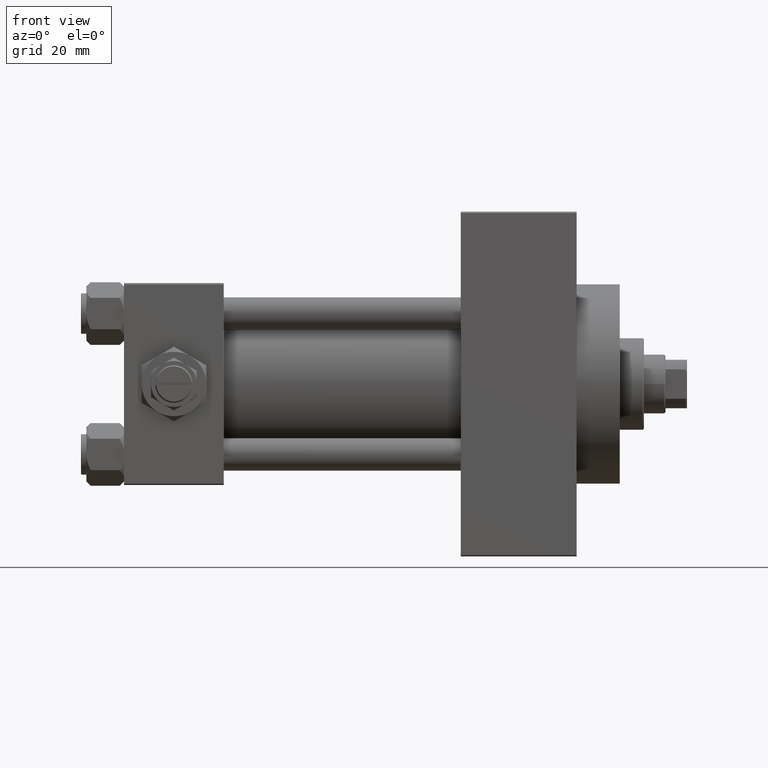
[diagram: clean part render]
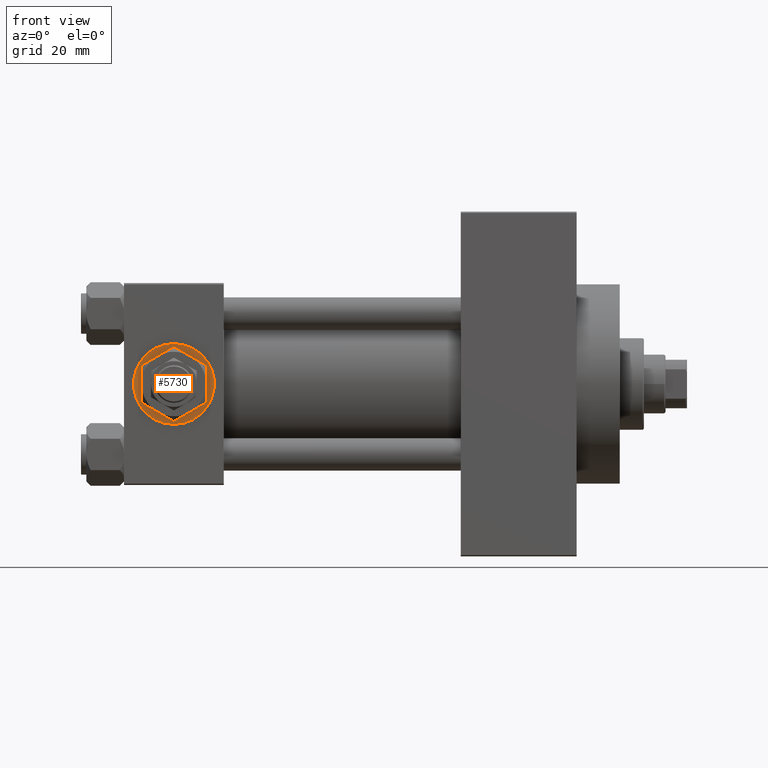
[diagram: same view with one face highlighted and labeled with its STEP entity id]
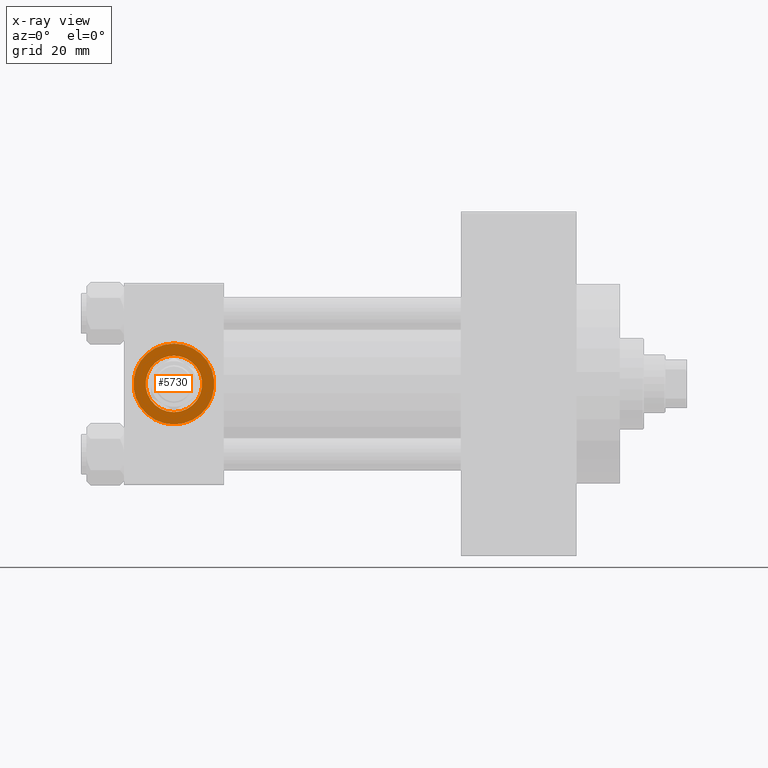
[diagram: x-ray of the same camera — body ghosted, the highlighted face saturated]
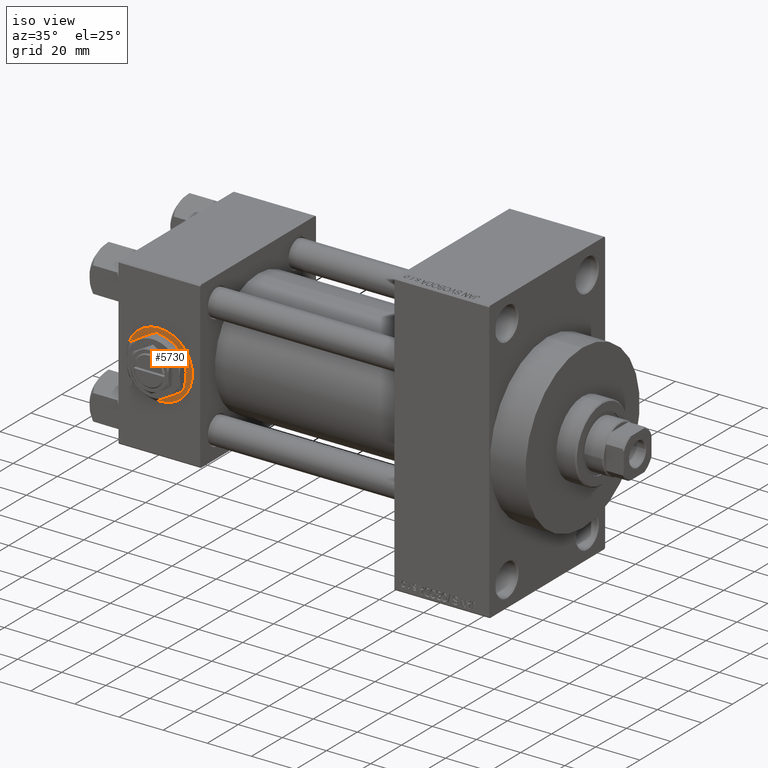
[diagram: same view with one face highlighted and labeled with its STEP entity id]
A machine part, front view. The second image highlights one B-rep face of the part: STEP entity #5730.
The next image is the same camera in x-ray: the body ghosted, the highlighted face saturated — about 0% of this face is hidden behind the body in this view.
A second angle (iso view) of the same face is appended — the face is thin or edge-on in the first view.
In plain terms, the highlighted planar face has unit normal (0, -1, -0).
Its self-contained STEP definition (entity closure, byte-faithful):
#443 = VERTEX_POINT ( 'NONE', #22171 ) ;
#2049 = PLANE ( 'NONE',  #4910 ) ;
#3812 = DIRECTION ( 'NONE',  ( 0.000000000000000000, -1.000000000000000000, -8.673617379884036705E-17 ) ) ;
#4910 = AXIS2_PLACEMENT_3D ( 'NONE', #9199, #35512, #46839 ) ;
#5437 = EDGE_LOOP ( 'NONE', ( #13551, #19756 ) ) ;
#5730 = ADVANCED_FACE ( 'NONE', ( #35028, #32048 ), #2049, .T. ) ;
#7262 = EDGE_CURVE ( 'NONE', #25494, #46042, #9519, .T. ) ;
#7398 = VERTEX_POINT ( 'NONE', #41534 ) ;
#8063 = AXIS2_PLACEMENT_3D ( 'NONE', #14252, #43299, #35920 ) ;
#9125 = CARTESIAN_POINT ( 'NONE',  ( 18.50000000000000000, -37.30000000000000426, -3.452099717193846907E-15 ) ) ;
#9199 = CARTESIAN_POINT ( 'NONE',  ( 18.50000000000000000, -37.30000000000000426, -3.452099717193846907E-15 ) ) ;
#9519 = CIRCLE ( 'NONE', #8063, 15.00000000000000178 ) ;
#11446 = EDGE_CURVE ( 'NONE', #46042, #25494, #41085, .T. ) ;
#12333 = DIRECTION ( 'NONE',  ( 0.000000000000000000, 0.000000000000000000, -1.000000000000000000 ) ) ;
#13551 = ORIENTED_EDGE ( 'NONE', *, *, #18634, .F. ) ;
#14173 = AXIS2_PLACEMENT_3D ( 'NONE', #42027, #46216, #19636 ) ;
#14252 = CARTESIAN_POINT ( 'NONE',  ( 18.50000000000000000, -37.30000000000000426, -3.452099717193846907E-15 ) ) ;
#16019 = DIRECTION ( 'NONE',  ( 0.000000000000000000, -1.000000000000000000, -8.673617379884036705E-17 ) ) ;
#16544 = CIRCLE ( 'NONE', #14173, 10.48000000000000043 ) ;
#18402 = EDGE_CURVE ( 'NONE', #443, #7398, #29117, .T. ) ;
#18634 = EDGE_CURVE ( 'NONE', #7398, #443, #16544, .T. ) ;
#19636 = DIRECTION ( 'NONE',  ( 0.000000000000000000, 0.000000000000000000, -1.000000000000000000 ) ) ;
#19756 = ORIENTED_EDGE ( 'NONE', *, *, #18402, .F. ) ;
#22171 = CARTESIAN_POINT ( 'NONE',  ( 18.50000000000000000, -37.30000000000000426, 10.47999999999999687 ) ) ;
#25494 = VERTEX_POINT ( 'NONE', #34555 ) ;
#27559 = AXIS2_PLACEMENT_3D ( 'NONE', #9125, #16019, #12333 ) ;
#28536 = AXIS2_PLACEMENT_3D ( 'NONE', #46915, #3812, #40720 ) ;
#29117 = CIRCLE ( 'NONE', #27559, 10.48000000000000043 ) ;
#32048 = FACE_OUTER_BOUND ( 'NONE', #45708, .T. ) ;
#34541 = ORIENTED_EDGE ( 'NONE', *, *, #7262, .T. ) ;
#34555 = CARTESIAN_POINT ( 'NONE',  ( 18.50000000000000000, -37.30000000000000426, -15.00000000000000533 ) ) ;
#35028 = FACE_BOUND ( 'NONE', #5437, .T. ) ;
#35512 = DIRECTION ( 'NONE',  ( 0.000000000000000000, -1.000000000000000000, -8.673617379884036705E-17 ) ) ;
#35920 = DIRECTION ( 'NONE',  ( 0.000000000000000000, 0.000000000000000000, -1.000000000000000000 ) ) ;
#36904 = ORIENTED_EDGE ( 'NONE', *, *, #11446, .T. ) ;
#40720 = DIRECTION ( 'NONE',  ( 0.000000000000000000, 0.000000000000000000, -1.000000000000000000 ) ) ;
#41085 = CIRCLE ( 'NONE', #28536, 15.00000000000000178 ) ;
#41534 = CARTESIAN_POINT ( 'NONE',  ( 18.50000000000000000, -37.30000000000000426, -10.48000000000000398 ) ) ;
#42027 = CARTESIAN_POINT ( 'NONE',  ( 18.50000000000000000, -37.30000000000000426, -3.452099717193846907E-15 ) ) ;
#43299 = DIRECTION ( 'NONE',  ( 0.000000000000000000, -1.000000000000000000, -8.673617379884036705E-17 ) ) ;
#44917 = CARTESIAN_POINT ( 'NONE',  ( 18.50000000000000355, -37.30000000000000426, 14.99999999999999822 ) ) ;
#45708 = EDGE_LOOP ( 'NONE', ( #34541, #36904 ) ) ;
#46042 = VERTEX_POINT ( 'NONE', #44917 ) ;
#46216 = DIRECTION ( 'NONE',  ( 0.000000000000000000, -1.000000000000000000, -8.673617379884036705E-17 ) ) ;
#46839 = DIRECTION ( 'NONE',  ( 0.000000000000000000, 8.673617379884036705E-17, -1.000000000000000000 ) ) ;
#46915 = CARTESIAN_POINT ( 'NONE',  ( 18.50000000000000000, -37.30000000000000426, -3.452099717193846907E-15 ) ) ;